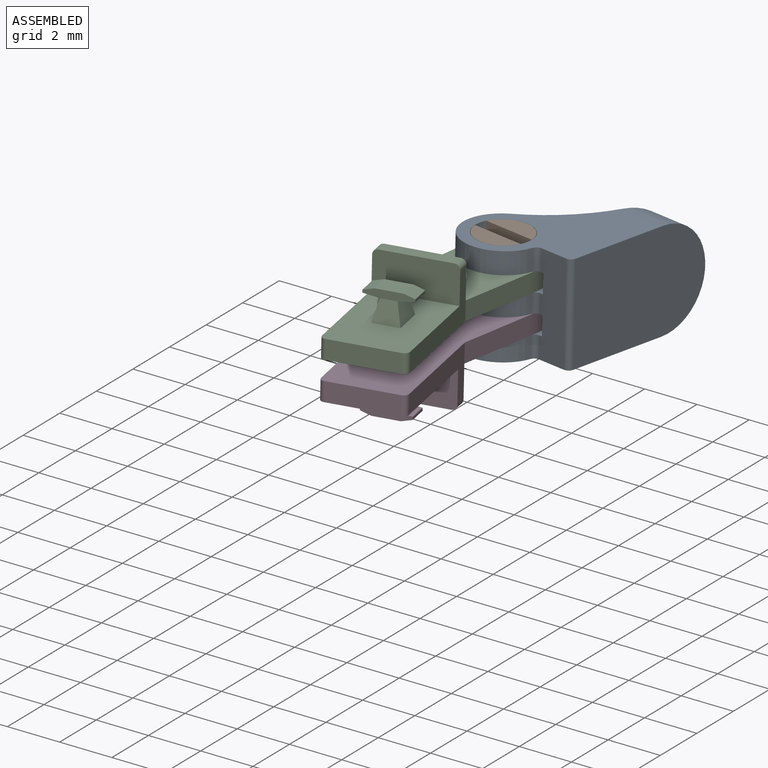
[diagram: assembled view]
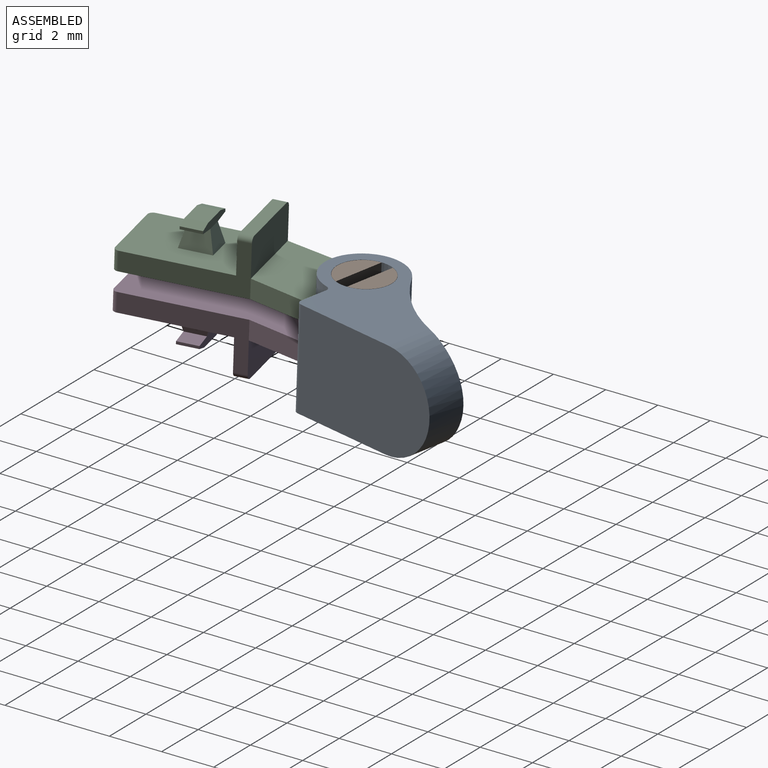
[diagram: assembled view, second angle]
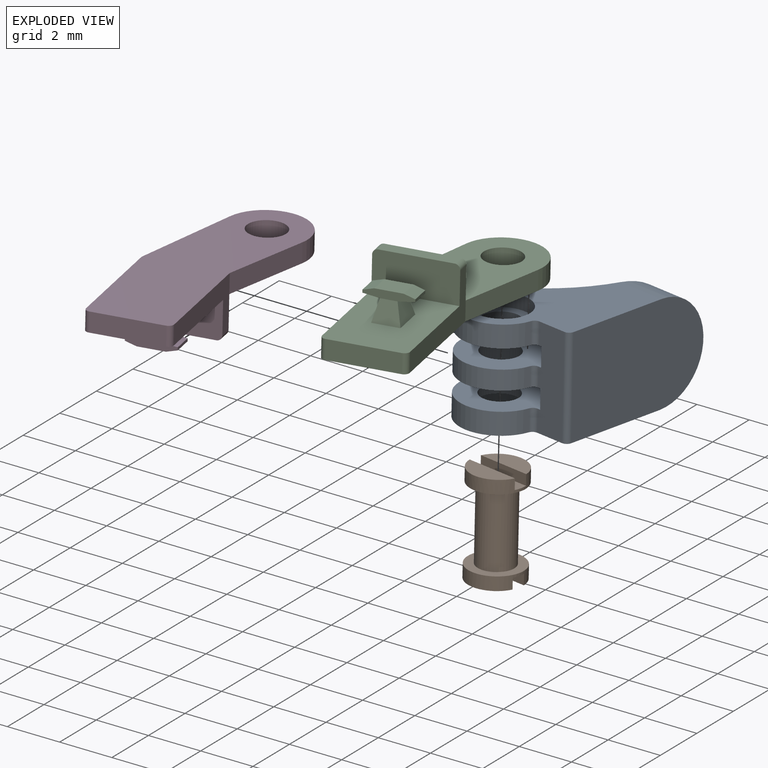
[diagram: exploded view]
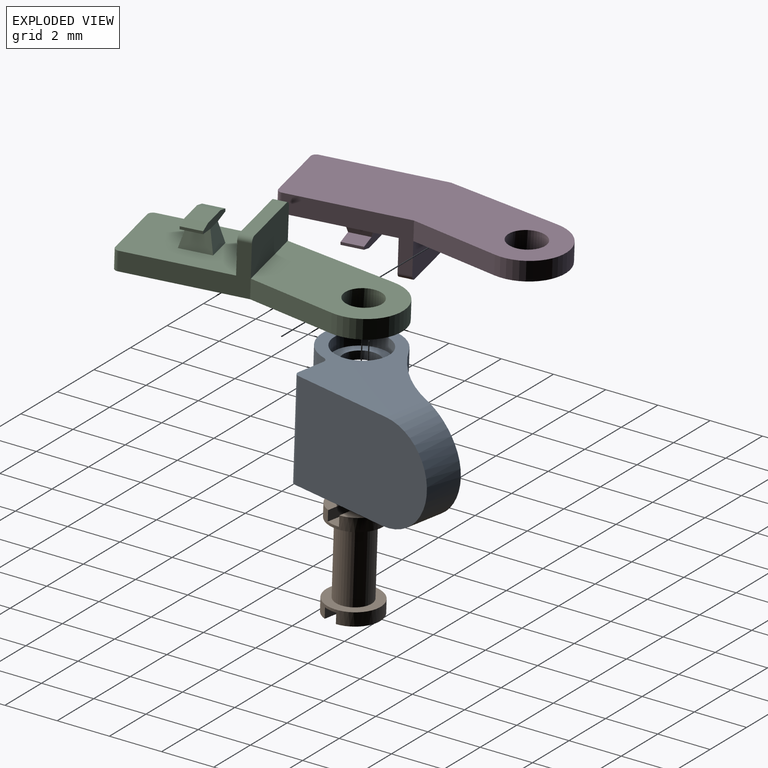
[diagram: exploded view, second angle]
ASSEMBLY  parts=4 mates=2
PART A: 32 faces, bbox 7.5x3.8x4.5 mm
  f0: cylinder r=0.7mm len=1.4mm, axis (0,1,0), area 1.4mm2, adj f15,f31
  f1: cylinder r=1.5mm len=2.99mm, axis (0,1,0), area 4.9mm2, adj f3,f6,f7,f20
  f2: cylinder r=1.5mm len=2.99mm, axis (0,1,0), area 4.3mm2, adj f4,f6,f14,f21
  f3: cylinder r=0.2mm len=0.82mm, axis (0,1,0), area 0.2mm2, adj f1,f7,f11,f20
  f4: cylinder r=0.2mm len=0.72mm, axis (0,1,0), area 0.2mm2, adj f2,f11,f14,f21
  f5: plane 5.8x3.8mm, normal (0,0,-1), area 20.5mm2, adj f7,f8,f12,f13
  f6: cylinder r=6mm len=4.8mm, axis (0,1,0), area 14.7mm2, adj f1,f2,f7,f8,f9,f13,f14,f15
  f7: plane 5.6x4.5mm, normal (0,1,0), area 12.9mm2, adj f1,f3,f5,f6,f11,f12,f13,f27
  f8: plane 5.6x4.5mm, normal (0,-1,0), area 12.9mm2, adj f5,f6,f9,f10,f11,f12,f13,f30
  f9: cylinder r=1.5mm len=2.99mm, axis (0,1,0), area 4.9mm2, adj f6,f8,f10,f15
  f10: cylinder r=0.2mm len=0.82mm, axis (0,1,0), area 0.2mm2, adj f8,f9,f11,f15
  f11: plane 3.8x1.11mm, normal (-1,0,0), area 4.1mm2, adj f3,f4,f7,f8,f10,f12,f14,f15
  f12: cylinder r=0.2mm len=3.8mm, axis (0,1,0), area 1.2mm2, adj f5,f7,f8,f11
  f13: cylinder r=1.9mm len=3.8mm, axis (0,0,1), area 9.4mm2, adj f5,f6,f7,f8
  f14: plane 5.2x3.3mm, normal (0,-1,0), area 9.6mm2, adj f2,f4,f6,f11,f16,f17,f26
  f15: plane 5.2x3.3mm, normal (0,1,0), area 9.6mm2, adj f0,f6,f9,f10,f11,f16,f19
  f16: plane 3.9x0.72mm, normal (0,0,1), area 2.8mm2, adj f11,f14,f15,f17,f18,f19
  f17: cylinder r=0.2mm len=0.76mm, axis (0,0,-1), area 0.2mm2, adj f6,f14,f16,f18
  f18: plane 0.68x0.32mm, normal (-1,0,0), area 0.2mm2, adj f6,f16,f17,f19
  f19: cylinder r=0.2mm len=0.76mm, axis (0,0,-1), area 0.2mm2, adj f6,f15,f16,f18
  f20: plane 5.2x3.3mm, normal (0,-1,0), area 9.6mm2, adj f1,f3,f6,f11,f22,f23,f29
  f21: plane 5.2x3.3mm, normal (0,1,0), area 9.6mm2, adj f2,f4,f6,f11,f22,f25,f26
  f22: plane 3.9x0.72mm, normal (0,0,1), area 2.8mm2, adj f11,f20,f21,f23,f24,f25
  f23: cylinder r=0.2mm len=0.76mm, axis (0,0,-1), area 0.2mm2, adj f6,f20,f22,f24
  f24: plane 0.68x0.32mm, normal (-1,0,0), area 0.2mm2, adj f6,f22,f23,f25
  f25: cylinder r=0.2mm len=0.76mm, axis (0,0,-1), area 0.2mm2, adj f6,f21,f22,f24
  f26: cylinder r=0.7mm len=1.4mm, axis (0,1,0), area 3.2mm2, adj f14,f21
  f27: cylinder r=1.05mm len=2.1mm, axis (0,1,0), area 3.3mm2, adj f7,f28
  f28: plane 2.1x2.1mm, normal (0,1,0), area 1.9mm2, adj f27,f29
  f29: cylinder r=0.7mm len=1.4mm, axis (0,1,0), area 1.4mm2, adj f20,f28
  f30: cylinder r=1.05mm len=2.1mm, axis (0,-1,0), area 3.3mm2, adj f8,f31
  f31: plane 2.1x2.1mm, normal (0,-1,0), area 1.9mm2, adj f0,f30
PART B: 15 faces, bbox 2.1x3.8x2.1 mm
  f0: plane 2.02x0.79mm, normal (0,1,0), area 1.2mm2, adj f11,f12
  f1: plane 2.02x0.79mm, normal (0,1,0), area 1.2mm2, adj f11,f13
  f2: plane 2.02x0.79mm, normal (0,-1,0), area 1.2mm2, adj f4,f7
  f3: plane 2.08x2.08mm, normal (0,1,0), area 1.9mm2, adj f4,f9
  f4: cylinder r=1.04mm len=2.08mm, axis (0,-1,0), area 2.9mm2, adj f2,f3,f5,f6,f7,f8
  f5: plane 2.02x0.79mm, normal (0,-1,0), area 1.2mm2, adj f4,f6
  f6: plane 2.02x0.4mm, normal (-1,0,0), area 0.8mm2, adj f4,f5,f8
  f7: plane 2.02x0.4mm, normal (1,0,0), area 0.8mm2, adj f2,f4,f8
  f8: plane 2.08x0.5mm, normal (0,-1,0), area 1mm2, adj f4,f6,f7
  f9: cylinder r=0.69mm len=2.8mm, axis (0,-1,0), area 12.1mm2, adj f3,f10
  f10: plane 2.08x2.08mm, normal (0,-1,0), area 1.9mm2, adj f9,f11
  f11: cylinder r=1.04mm len=2.08mm, axis (0,-1,0), area 2.9mm2, adj f0,f1,f10,f12,f13,f14
  f12: plane 2.02x0.4mm, normal (1,0,0), area 0.8mm2, adj f0,f11,f14
  f13: plane 2.02x0.4mm, normal (-1,0,0), area 0.8mm2, adj f1,f11,f14
  f14: plane 2.08x0.5mm, normal (0,1,0), area 1mm2, adj f11,f12,f13
PART C: 30 faces, bbox 3.9x10.3x2.4 mm
  f0: plane 5.7x3.36mm, normal (0,0.03,1), area 13.4mm2, adj f1,f2,f3,f5,f6
  f1: cylinder r=0.7mm len=1.42mm, axis (0,-0.03,-1), area 3.2mm2, adj f0,f4
  f2: cylinder r=1.5mm len=2.99mm, axis (0,-0.03,-1), area 3.4mm2, adj f0,f3,f4,f5
  f3: plane 3.41x0.84mm, normal (0.99,-0.12,0), area 2.5mm2, adj f0,f2,f4,f12
  f4: plane 10.26x3.89mm, normal (0,-0.03,-1), area 27.5mm2, adj f1,f2,f3,f5,f11,f12,f13,f14
  f5: plane 4.35x0.87mm, normal (-1,0.08,0), area 3.1mm2, adj f0,f2,f4,f11
  f6: plane 2.93x1.44mm, normal (-0.21,0.98,-0.03), area 4.2mm2, adj f0,f7,f8,f9,f11,f12
  f7: cylinder r=0.2mm len=0.54mm, axis (-0.21,0.98,-0.03), area 0.2mm2, adj f6,f8,f10,f11
  f8: plane 2.65x1.04mm, normal (0,0.03,1), area 1.3mm2, adj f6,f7,f9,f10
  f9: cylinder r=0.2mm len=0.52mm, axis (-0.21,0.98,-0.03), area 0.2mm2, adj f6,f8,f10,f12
  f10: plane 2.93x1.44mm, normal (0.21,-0.98,0.03), area 4.2mm2, adj f7,f8,f9,f11,f12,f15
  f11: plane 4.46x1.96mm, normal (-0.98,-0.21,0.01), area 3.9mm2, adj f4,f5,f6,f7,f10,f13,f15
  f12: plane 4.46x1.96mm, normal (0.98,0.21,-0.01), area 3.8mm2, adj f3,f4,f6,f9,f10,f15,f16
  f13: cylinder r=0.2mm len=0.73mm, axis (0,0.03,1), area 0.2mm2, adj f4,f11,f14,f15
  f14: plane 2.54x0.74mm, normal (0.21,-0.98,0.03), area 1.9mm2, adj f4,f13,f15,f16
  f15: plane 4.7x3.78mm, normal (0,0.03,1), area 11.4mm2, adj f10,f11,f12,f13,f14,f16,f17,f18
  f16: cylinder r=0.2mm len=0.73mm, axis (0,0.03,1), area 0.2mm2, adj f4,f12,f14,f15
  f17: plane 1.17x0.83mm, normal (-0.95,-0.2,0.25), area 0.8mm2, adj f15,f18,f20,f22
  f18: plane 0.98x0.8mm, normal (0.21,-0.94,0.28), area 0.7mm2, adj f15,f17,f19,f29
  f19: plane 1.17x0.84mm, normal (0.95,0.21,0.24), area 0.8mm2, adj f15,f18,f20,f23
  f20: plane 0.98x0.81mm, normal (-0.21,0.96,0.21), area 0.7mm2, adj f15,f17,f19,f28
  f21: plane 0.79x0.17mm, normal (-0.98,-0.21,0.01), area 0.1mm2, adj f22,f27,f28,f29
  f22: plane 0.91x0.76mm, normal (-0.12,-0.06,-0.99), area 0.5mm2, adj f17,f21,f28,f29
  f23: plane 0.91x0.76mm, normal (0.12,-0.01,-0.99), area 0.5mm2, adj f19,f24,f28,f29
  f24: plane 0.79x0.17mm, normal (0.98,0.21,-0.01), area 0.1mm2, adj f23,f25,f28,f29
  f25: plane 0.86x0.56mm, normal (0.28,0.09,0.96), area 0.3mm2, adj f24,f26,f28,f29
  f26: plane 1.15x0.99mm, normal (0,0.03,1), area 0.8mm2, adj f25,f27,f28,f29
  f27: plane 0.87x0.56mm, normal (-0.28,-0.03,0.96), area 0.3mm2, adj f21,f26,f28,f29
  f28: plane 1.76x0.38mm, normal (-0.21,0.98,-0.03), area 0.4mm2, adj f20,f21,f22,f23,f24,f25,f26,f27
  f29: plane 1.76x0.38mm, normal (0.21,-0.98,0.03), area 0.4mm2, adj f18,f21,f22,f23,f24,f25,f26,f27
PART D: 30 faces, bbox 3.9x10.3x2.3 mm
  f0: plane 1.17x0.84mm, normal (-0.95,-0.21,-0.24), area 0.8mm2, adj f1,f3,f17,f27
  f1: plane 0.98x0.81mm, normal (0.21,-0.96,-0.21), area 0.7mm2, adj f0,f2,f17,f29
  f2: plane 1.17x0.83mm, normal (0.95,0.2,-0.25), area 0.8mm2, adj f1,f3,f17,f26
  f3: plane 0.98x0.8mm, normal (-0.21,0.94,-0.28), area 0.7mm2, adj f0,f2,f17,f28
  f4: plane 2.93x1.44mm, normal (0.21,-0.98,0.03), area 4.2mm2, adj f6,f7,f8,f9,f10,f17
  f5: plane 2.93x1.44mm, normal (-0.21,0.98,-0.03), area 4.2mm2, adj f6,f7,f8,f9,f10,f13
  f6: plane 4.42x2.09mm, normal (0.98,0.21,-0.01), area 3.9mm2, adj f4,f5,f7,f11,f12,f17,f20
  f7: cylinder r=0.2mm len=0.54mm, axis (-0.21,0.98,-0.03), area 0.2mm2, adj f4,f5,f6,f8
  f8: plane 2.65x1.04mm, normal (0,-0.03,-1), area 1.3mm2, adj f4,f5,f7,f9
  f9: cylinder r=0.2mm len=0.52mm, axis (-0.21,0.98,-0.03), area 0.2mm2, adj f4,f5,f8,f10
  f10: plane 4.42x2.09mm, normal (-0.98,-0.21,0.01), area 3.9mm2, adj f4,f5,f9,f11,f16,f17,f18
  f11: plane 10.26x3.89mm, normal (0,0.03,1), area 27.5mm2, adj f6,f10,f12,f14,f15,f16,f18,f19
  f12: plane 3.41x0.84mm, normal (0.99,-0.12,0), area 2.5mm2, adj f6,f11,f13,f15
  f13: plane 5.7x3.36mm, normal (0,-0.03,-1), area 13.4mm2, adj f5,f12,f14,f15,f16
  f14: cylinder r=0.7mm len=1.42mm, axis (0,-0.03,-1), area 3.2mm2, adj f11,f13
  f15: cylinder r=1.5mm len=2.99mm, axis (0,-0.03,-1), area 3.4mm2, adj f11,f12,f13,f16
  f16: plane 4.35x0.87mm, normal (-1,0.08,0), area 3.1mm2, adj f10,f11,f13,f15
  f17: plane 4.7x3.78mm, normal (0,-0.03,-1), area 11.4mm2, adj f0,f1,f2,f3,f4,f6,f10,f18
  f18: cylinder r=0.2mm len=0.73mm, axis (0,0.03,1), area 0.2mm2, adj f10,f11,f17,f19
  f19: plane 2.54x0.74mm, normal (0.21,-0.98,0.03), area 1.9mm2, adj f11,f17,f18,f20
  f20: cylinder r=0.2mm len=0.73mm, axis (0,0.03,1), area 0.2mm2, adj f6,f11,f17,f19
  f21: plane 0.79x0.17mm, normal (-0.98,-0.21,0.01), area 0.1mm2, adj f22,f27,f28,f29
  f22: plane 0.86x0.56mm, normal (-0.28,-0.09,-0.96), area 0.3mm2, adj f21,f23,f28,f29
  f23: plane 1.15x0.99mm, normal (0,-0.03,-1), area 0.8mm2, adj f22,f24,f28,f29
  f24: plane 0.87x0.56mm, normal (0.28,0.03,-0.96), area 0.3mm2, adj f23,f25,f28,f29
  f25: plane 0.79x0.17mm, normal (0.98,0.21,-0.01), area 0.1mm2, adj f24,f26,f28,f29
  f26: plane 0.91x0.76mm, normal (0.12,0.06,0.99), area 0.5mm2, adj f2,f25,f28,f29
  f27: plane 0.91x0.76mm, normal (-0.12,0.01,0.99), area 0.5mm2, adj f0,f21,f28,f29
  f28: plane 1.76x0.38mm, normal (-0.21,0.98,-0.03), area 0.4mm2, adj f3,f21,f22,f23,f24,f25,f26,f27
  f29: plane 1.76x0.38mm, normal (0.21,-0.98,0.03), area 0.4mm2, adj f1,f21,f22,f23,f24,f25,f26,f27
PLACE A rot(axis=(-0.65,-0.53,0.55),115.6deg) t=(-5.44,-6.37,-9.74)mm
PLACE B rot(axis=(-0.65,-0.53,0.55),115.6deg) t=(-5.44,-6.37,-9.74)mm
PLACE C at identity fixed
PLACE D at identity
MATE planar A.f15 <-> C.f0  axis (0,-0.03,-1) through (-4.82,-5.49,-6.79)mm
MATE cylindrical B.f9 <-> C.f1  axis (0,0.03,1) through (-5.44,-6.31,-7.84)mm
